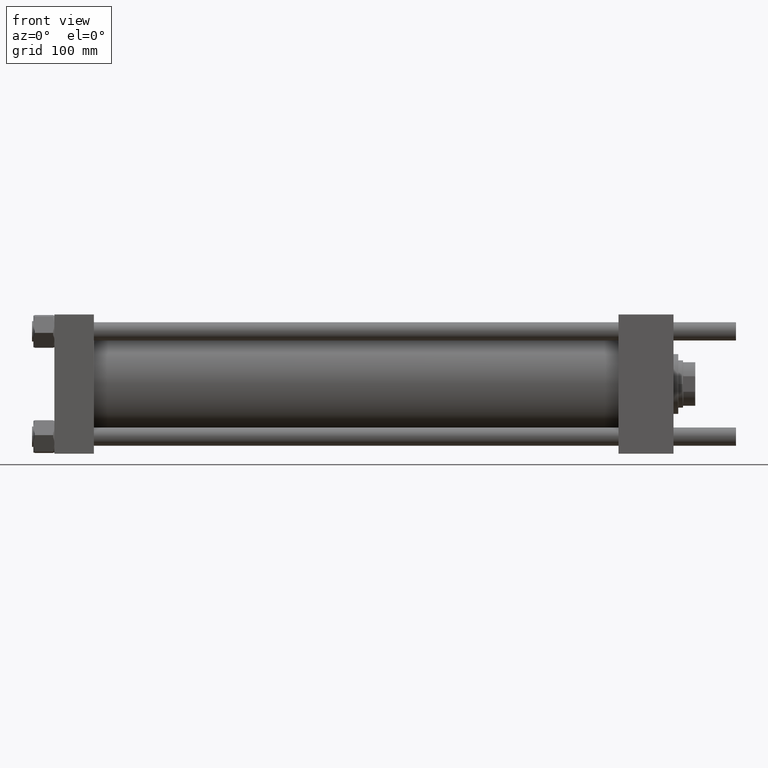
[diagram: clean part render]
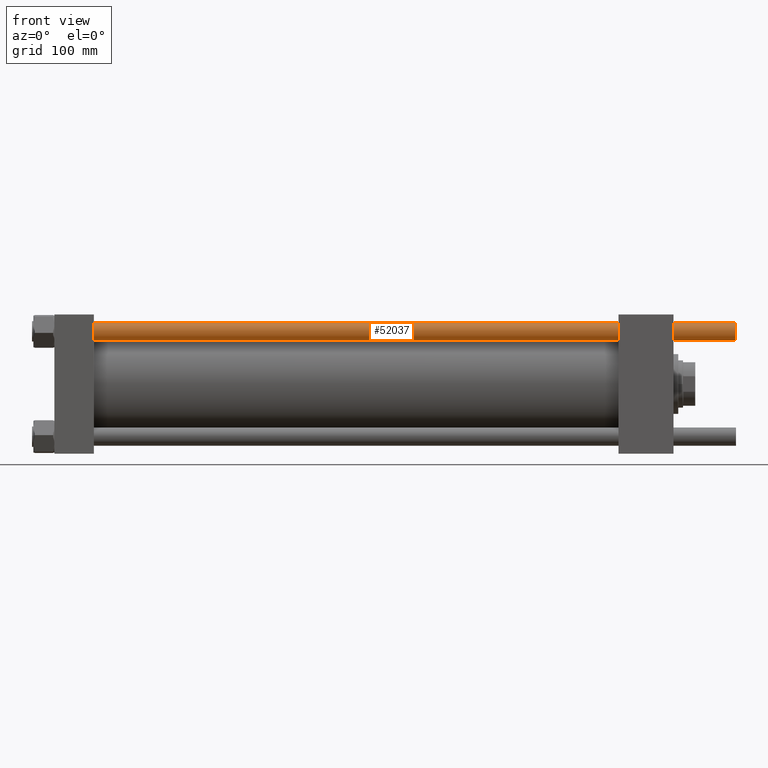
[diagram: same view with one face highlighted and labeled with its STEP entity id]
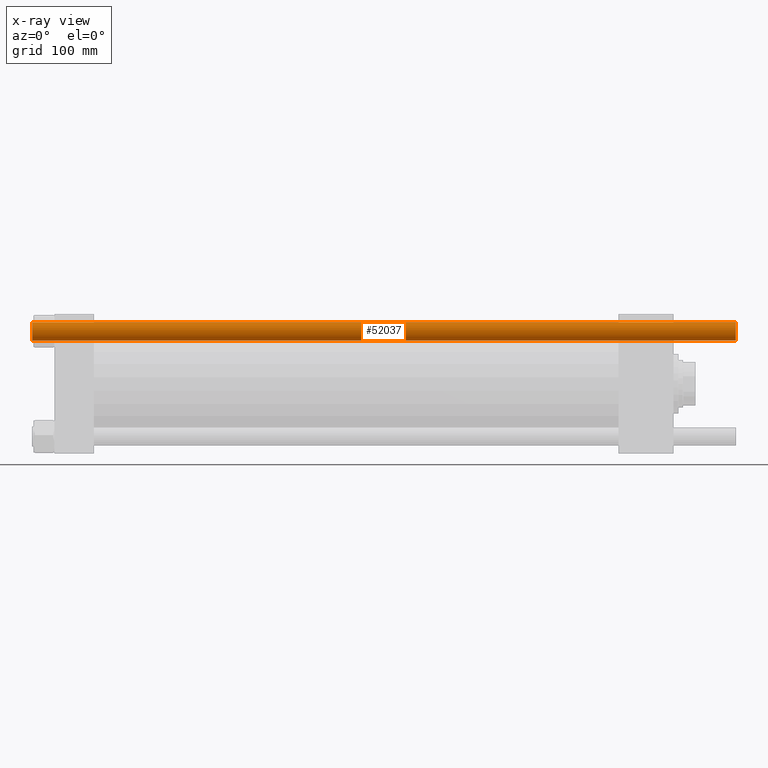
[diagram: x-ray of the same camera — body ghosted, the highlighted face saturated]
A machine part, front view. The second image highlights one B-rep face of the part: STEP entity #52037.
The next image is the same camera in x-ray: the body ghosted, the highlighted face saturated — about 0% of this face is hidden behind the body in this view.
In plain terms, the highlighted cylindrical surface (edge-blend (fillet) strip) has radius 13.5 mm, axis along (-1, 0, -0).
Its self-contained STEP definition (entity closure, byte-faithful):
#156 = EDGE_CURVE ( 'NONE', #10868, #55394, #33296, .T. ) ;
#2156 = CARTESIAN_POINT ( 'NONE',  ( 0.000000000000000000, 0.000000000000000000, 0.4999999999999449329 ) ) ;
#2216 = AXIS2_PLACEMENT_3D ( 'NONE', #2156, #37181, #37746 ) ;
#2420 = DIRECTION ( 'NONE',  ( 0.000000000000000000, 0.000000000000000000, -1.000000000000000000 ) ) ;
#5145 = DIRECTION ( 'NONE',  ( -0.000000000000000000, -0.000000000000000000, -1.000000000000000000 ) ) ;
#5605 = CARTESIAN_POINT ( 'NONE',  ( 0.000000000000000000, 0.000000000000000000, 1035.500000000000227 ) ) ;
#6821 = CIRCLE ( 'NONE', #2216, 13.50000000000000000 ) ;
#8166 = DIRECTION ( 'NONE',  ( -1.000000000000000000, 0.000000000000000000, 0.000000000000000000 ) ) ;
#8535 = ORIENTED_EDGE ( 'NONE', *, *, #156, .T. ) ;
#9617 = VECTOR ( 'NONE', #35121, 1000.000000000000000 ) ;
#9757 = CARTESIAN_POINT ( 'NONE',  ( 13.50000000000000000, 1.653273178848926867E-15, 1036.000000000000000 ) ) ;
#10868 = VERTEX_POINT ( 'NONE', #44962 ) ;
#12223 = CYLINDRICAL_SURFACE ( 'NONE', #54893, 13.50000000000000000 ) ;
#15715 = CARTESIAN_POINT ( 'NONE',  ( 13.50000000000000000, 1.653273178848926867E-15, 0.4999999999999449329 ) ) ;
#16073 = EDGE_CURVE ( 'NONE', #44913, #49247, #6821, .T. ) ;
#16552 = EDGE_CURVE ( 'NONE', #55394, #44913, #35541, .T. ) ;
#16613 = AXIS2_PLACEMENT_3D ( 'NONE', #5605, #2420, #45259 ) ;
#16630 = ORIENTED_EDGE ( 'NONE', *, *, #53744, .F. ) ;
#17351 = EDGE_LOOP ( 'NONE', ( #8535, #27348, #54054, #16630 ) ) ;
#20643 = FACE_OUTER_BOUND ( 'NONE', #17351, .T. ) ;
#21215 = CARTESIAN_POINT ( 'NONE',  ( 0.000000000000000000, 0.000000000000000000, 1036.000000000000000 ) ) ;
#25858 = DIRECTION ( 'NONE',  ( -0.000000000000000000, -0.000000000000000000, -1.000000000000000000 ) ) ;
#27348 = ORIENTED_EDGE ( 'NONE', *, *, #16552, .T. ) ;
#29203 = CARTESIAN_POINT ( 'NONE',  ( 13.50000000000000000, 1.653273178848926867E-15, 1035.500000000000227 ) ) ;
#33296 = CIRCLE ( 'NONE', #16613, 13.50000000000000000 ) ;
#35121 = DIRECTION ( 'NONE',  ( -0.000000000000000000, -0.000000000000000000, -1.000000000000000000 ) ) ;
#35404 = CARTESIAN_POINT ( 'NONE',  ( -13.50000000000000000, 0.000000000000000000, 0.4999999999999449329 ) ) ;
#35541 = LINE ( 'NONE', #9757, #54899 ) ;
#37181 = DIRECTION ( 'NONE',  ( -0.000000000000000000, -0.000000000000000000, 1.000000000000000000 ) ) ;
#37746 = DIRECTION ( 'NONE',  ( 1.000000000000000000, 0.000000000000000000, 0.000000000000000000 ) ) ;
#38335 = CARTESIAN_POINT ( 'NONE',  ( -13.50000000000000000, 0.000000000000000000, 1036.000000000000000 ) ) ;
#44913 = VERTEX_POINT ( 'NONE', #15715 ) ;
#44962 = CARTESIAN_POINT ( 'NONE',  ( -13.50000000000000000, 0.000000000000000000, 1035.500000000000227 ) ) ;
#45259 = DIRECTION ( 'NONE',  ( 1.000000000000000000, 0.000000000000000000, 0.000000000000000000 ) ) ;
#48440 = LINE ( 'NONE', #38335, #9617 ) ;
#49247 = VERTEX_POINT ( 'NONE', #35404 ) ;
#52037 = ADVANCED_FACE ( 'NONE', ( #20643 ), #12223, .T. ) ;
#53744 = EDGE_CURVE ( 'NONE', #10868, #49247, #48440, .T. ) ;
#54054 = ORIENTED_EDGE ( 'NONE', *, *, #16073, .T. ) ;
#54893 = AXIS2_PLACEMENT_3D ( 'NONE', #21215, #25858, #8166 ) ;
#54899 = VECTOR ( 'NONE', #5145, 1000.000000000000000 ) ;
#55394 = VERTEX_POINT ( 'NONE', #29203 ) ;